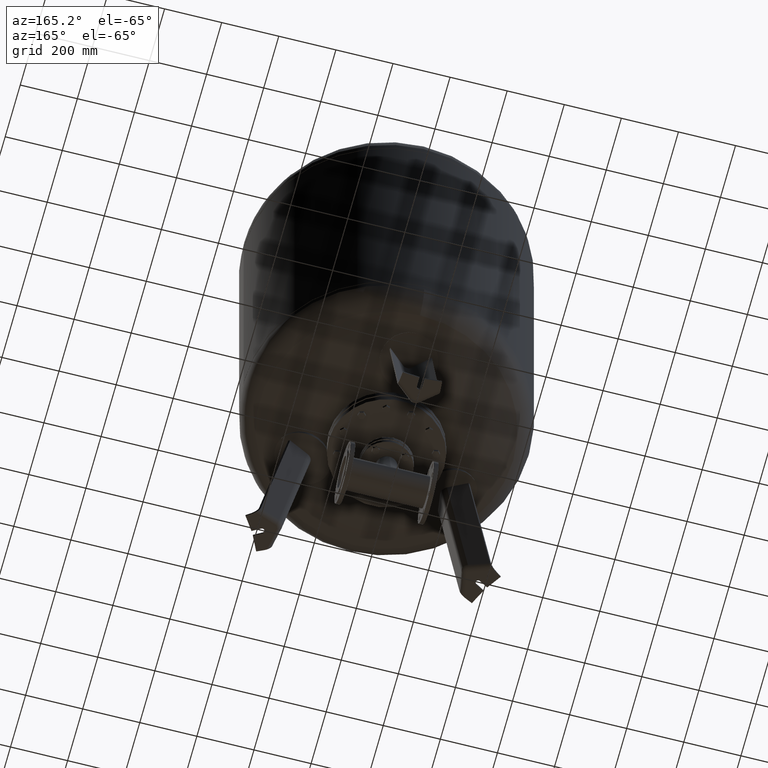
[diagram: clean part render]
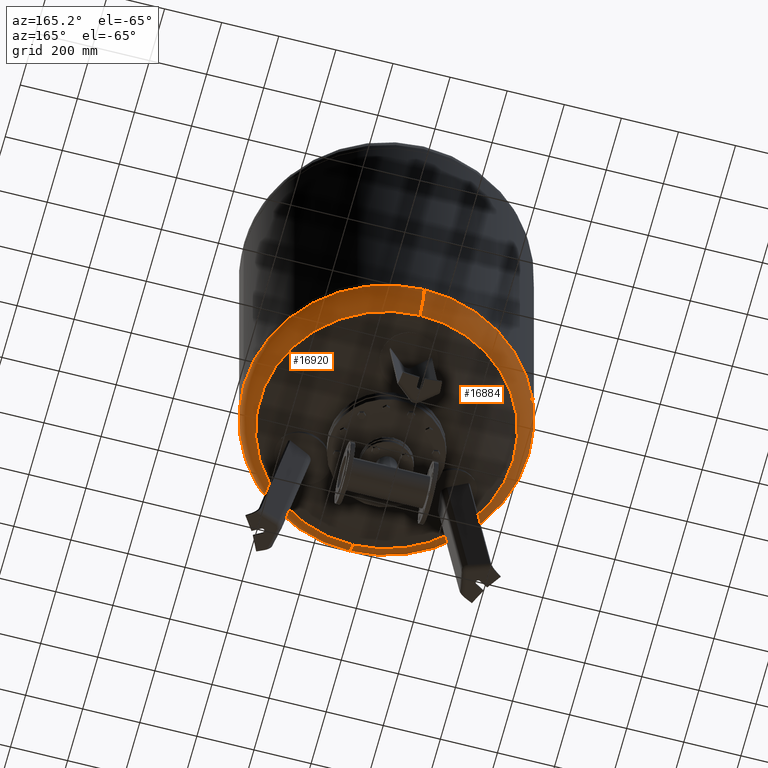
[diagram: same view with one multi-face feature highlighted, each face labeled with its STEP entity id]
A machine part, auxiliary view. The highlighted faces form ONE feature: a constant-radius fillet chain: 2 tangent blend faces with common blend radius 100.6 mm. The faces share edges in the B-rep.
Their STEP definitions:
[1] entity #16920 (Torus):
#16806=CARTESIAN_POINT('',(500.0,2.569315E-014,652.455355072719500));
#16807=VERTEX_POINT('',#16806);
#16814=CARTESIAN_POINT('',(-6.123032E-014,499.999999999999940,652.455355072719610));
#16815=VERTEX_POINT('',#16814);
#16816=CARTESIAN_POINT('',(-2.595210E-014,-3.553717E-014,652.455355072719500));
#16817=DIRECTION('',(0.0,0.0,1.0));
#16818=DIRECTION('',(-1.0,0.0,0.0));
#16819=AXIS2_PLACEMENT_3D('',#16816,#16817,#16818);
#16820=CIRCLE('',#16819,500.0);
#16821=EDGE_CURVE('',#16807,#16815,#16820,.T.);
#16838=CARTESIAN_POINT('',(3.381269E-030,-500.000000000000060,652.455355072719390));
#16839=VERTEX_POINT('',#16838);
#16840=CARTESIAN_POINT('',(1.211146E-014,-443.777777777777600,562.172616747466120));
#16841=VERTEX_POINT('',#16840);
#16842=CARTESIAN_POINT('',(0.0,-399.399999999999980,652.455355072719500));
#16843=DIRECTION('',(1.0,0.0,0.0));
#16844=DIRECTION('',(0.0,-1.0,0.0));
#16845=AXIS2_PLACEMENT_3D('',#16842,#16843,#16844);
#16846=CIRCLE('',#16845,100.600000000000010);
#16847=EDGE_CURVE('',#16839,#16841,#16846,.T.);
#16857=CARTESIAN_POINT('',(-4.223385E-014,443.777777777777600,562.172616747466350));
#16858=VERTEX_POINT('',#16857);
#16859=CARTESIAN_POINT('',(-4.891078E-014,399.399999999999860,652.455355072719730));
#16860=DIRECTION('',(-1.0,0.0,0.0));
#16861=DIRECTION('',(0.0,1.0,0.0));
#16862=AXIS2_PLACEMENT_3D('',#16859,#16860,#16861);
#16863=CIRCLE('',#16862,100.600000000000010);
#16864=EDGE_CURVE('',#16815,#16858,#16863,.T.);
#16892=CARTESIAN_POINT('',(-1.384064E-014,-1.895250E-014,562.172616747466240));
#16893=DIRECTION('',(0.0,0.0,1.0));
#16894=DIRECTION('',(-1.0,0.0,0.0));
#16895=AXIS2_PLACEMENT_3D('',#16892,#16893,#16894);
#16896=CIRCLE('',#16895,443.777777777777600);
#16897=EDGE_CURVE('',#16841,#16858,#16896,.T.);
#16902=CARTESIAN_POINT('',(0.0,-3.553717E-014,652.455355072719610));
#16903=DIRECTION('',(-1.341503E-016,-1.836970E-016,1.0));
#16904=DIRECTION('',(0.0,-1.0,0.0));
#16905=AXIS2_PLACEMENT_3D('',#16902,#16903,#16904);
#16906=TOROIDAL_SURFACE('',#16905,399.399999999999920,100.600000000000010);
#16907=ORIENTED_EDGE('',*,*,#16847,.T.);
#16908=ORIENTED_EDGE('',*,*,#16897,.T.);
#16909=ORIENTED_EDGE('',*,*,#16864,.F.);
#16910=ORIENTED_EDGE('',*,*,#16821,.F.);
#16911=CARTESIAN_POINT('',(-2.595210E-014,-3.553717E-014,652.455355072719500));
#16912=DIRECTION('',(0.0,0.0,1.0));
#16913=DIRECTION('',(-1.0,0.0,0.0));
#16914=AXIS2_PLACEMENT_3D('',#16911,#16912,#16913);
#16915=CIRCLE('',#16914,500.0);
#16916=EDGE_CURVE('',#16839,#16807,#16915,.T.);
#16917=ORIENTED_EDGE('',*,*,#16916,.F.);
#16918=EDGE_LOOP('',(#16907,#16908,#16909,#16910,#16917));
#16919=FACE_OUTER_BOUND('',#16918,.T.);
#16920=ADVANCED_FACE('',(#16919),#16906,.T.);
[2] entity #16884 (Torus):
#16789=CARTESIAN_POINT('',(-500.0,-3.553717E-014,652.455355072719390));
#16790=VERTEX_POINT('',#16789);
#16814=CARTESIAN_POINT('',(-6.123032E-014,499.999999999999940,652.455355072719610));
#16815=VERTEX_POINT('',#16814);
#16823=CARTESIAN_POINT('',(-2.595210E-014,-3.553717E-014,652.455355072719500));
#16824=DIRECTION('',(0.0,0.0,1.0));
#16825=DIRECTION('',(-1.0,0.0,0.0));
#16826=AXIS2_PLACEMENT_3D('',#16823,#16824,#16825);
#16827=CIRCLE('',#16826,500.0);
#16828=EDGE_CURVE('',#16815,#16790,#16827,.T.);
#16833=CARTESIAN_POINT('',(0.0,-3.553717E-014,652.455355072719610));
#16834=DIRECTION('',(-1.341503E-016,-1.836970E-016,1.0));
#16835=DIRECTION('',(0.0,-1.0,0.0));
#16836=AXIS2_PLACEMENT_3D('',#16833,#16834,#16835);
#16837=TOROIDAL_SURFACE('',#16836,399.399999999999920,100.600000000000010);
#16838=CARTESIAN_POINT('',(3.381269E-030,-500.000000000000060,652.455355072719390));
#16839=VERTEX_POINT('',#16838);
#16840=CARTESIAN_POINT('',(1.211146E-014,-443.777777777777600,562.172616747466120));
#16841=VERTEX_POINT('',#16840);
#16842=CARTESIAN_POINT('',(0.0,-399.399999999999980,652.455355072719500));
#16843=DIRECTION('',(1.0,0.0,0.0));
#16844=DIRECTION('',(0.0,-1.0,0.0));
#16845=AXIS2_PLACEMENT_3D('',#16842,#16843,#16844);
#16846=CIRCLE('',#16845,100.600000000000010);
#16847=EDGE_CURVE('',#16839,#16841,#16846,.T.);
#16848=ORIENTED_EDGE('',*,*,#16847,.F.);
#16849=CARTESIAN_POINT('',(-2.595210E-014,-3.553717E-014,652.455355072719500));
#16850=DIRECTION('',(0.0,0.0,1.0));
#16851=DIRECTION('',(-1.0,0.0,0.0));
#16852=AXIS2_PLACEMENT_3D('',#16849,#16850,#16851);
#16853=CIRCLE('',#16852,500.0);
#16854=EDGE_CURVE('',#16790,#16839,#16853,.T.);
#16855=ORIENTED_EDGE('',*,*,#16854,.F.);
#16856=ORIENTED_EDGE('',*,*,#16828,.F.);
#16857=CARTESIAN_POINT('',(-4.223385E-014,443.777777777777600,562.172616747466350));
#16858=VERTEX_POINT('',#16857);
#16859=CARTESIAN_POINT('',(-4.891078E-014,399.399999999999860,652.455355072719730));
#16860=DIRECTION('',(-1.0,0.0,0.0));
#16861=DIRECTION('',(0.0,1.0,0.0));
#16862=AXIS2_PLACEMENT_3D('',#16859,#16860,#16861);
#16863=CIRCLE('',#16862,100.600000000000010);
#16864=EDGE_CURVE('',#16815,#16858,#16863,.T.);
#16865=ORIENTED_EDGE('',*,*,#16864,.T.);
#16866=CARTESIAN_POINT('',(-443.777777777777600,-1.895250E-014,562.172616747466240));
#16867=VERTEX_POINT('',#16866);
#16868=CARTESIAN_POINT('',(-1.384064E-014,-1.895250E-014,562.172616747466240));
#16869=DIRECTION('',(0.0,0.0,1.0));
#16870=DIRECTION('',(-1.0,0.0,0.0));
#16871=AXIS2_PLACEMENT_3D('',#16868,#16869,#16870);
#16872=CIRCLE('',#16871,443.777777777777600);
#16873=EDGE_CURVE('',#16858,#16867,#16872,.T.);
#16874=ORIENTED_EDGE('',*,*,#16873,.T.);
#16875=CARTESIAN_POINT('',(-1.384064E-014,-1.895250E-014,562.172616747466240));
#16876=DIRECTION('',(0.0,0.0,1.0));
#16877=DIRECTION('',(-1.0,0.0,0.0));
#16878=AXIS2_PLACEMENT_3D('',#16875,#16876,#16877);
#16879=CIRCLE('',#16878,443.777777777777600);
#16880=EDGE_CURVE('',#16867,#16841,#16879,.T.);
#16881=ORIENTED_EDGE('',*,*,#16880,.T.);
#16882=EDGE_LOOP('',(#16848,#16855,#16856,#16865,#16874,#16881));
#16883=FACE_OUTER_BOUND('',#16882,.T.);
#16884=ADVANCED_FACE('',(#16883),#16837,.T.);